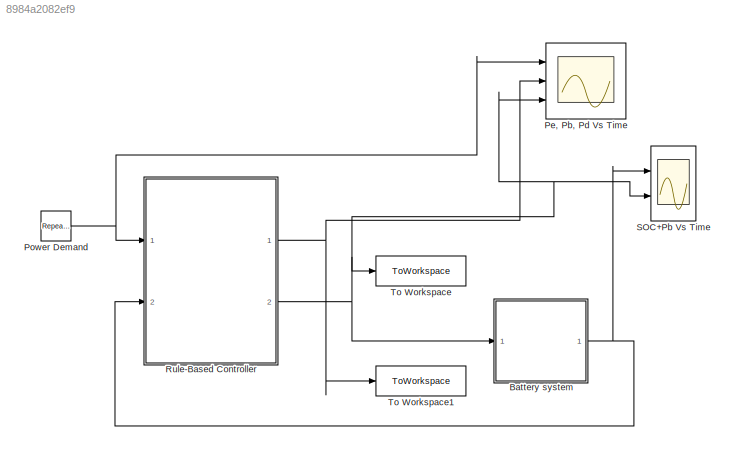
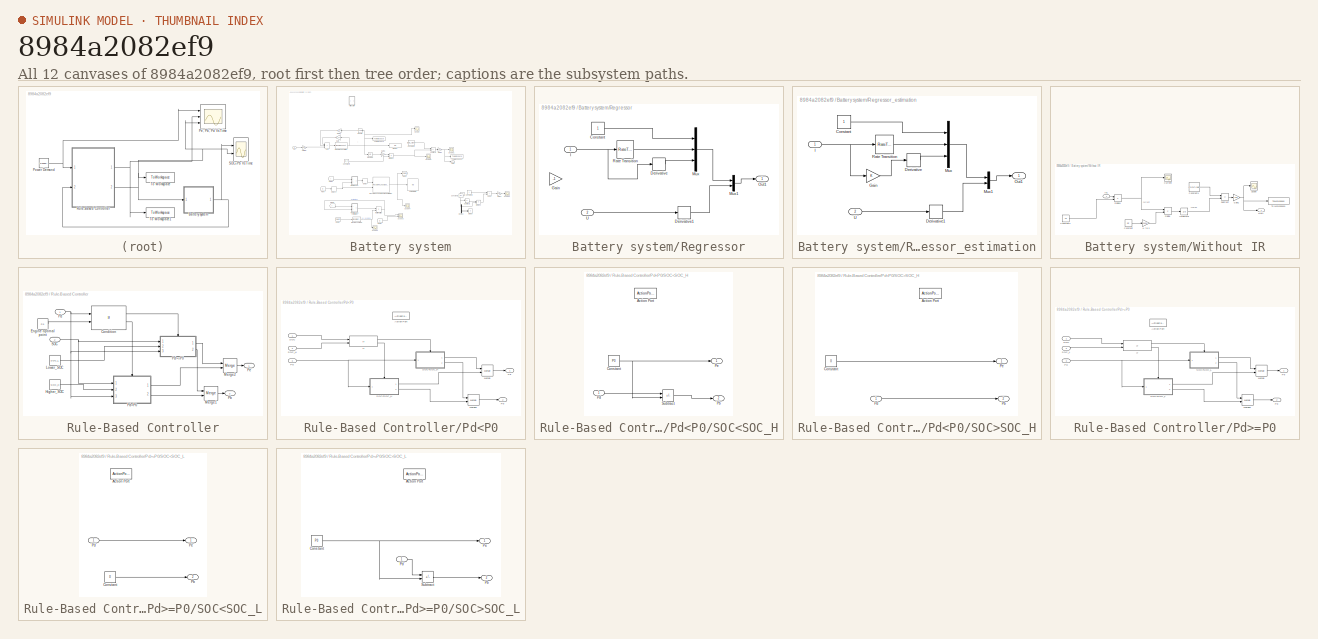
[diagram: thumbnail index - all 12 canvases of the model, root first then tree order]
MODEL slx_8984a2082ef9
KIND model
CONFIG AbsTol = auto
CONFIG EnableMultiTasking = off
CONFIG FixedStep = auto
CONFIG MaxStep = auto
CONFIG MinStep = auto
CONFIG RelTol = 1
CONFIG SampleTimeConstraint = Unconstrained
CONFIG SolverName = VariableStepAuto
CONFIG StartTime = 0.0
CONFIG StopTime = 262
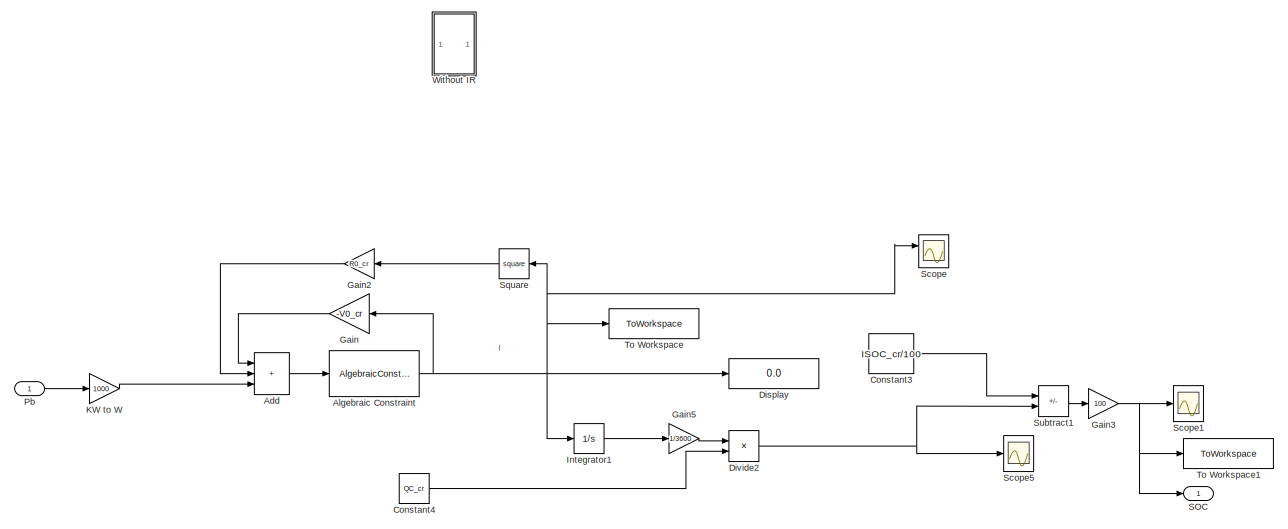
[diagram: Battery system - part 1/2, full width, top band]
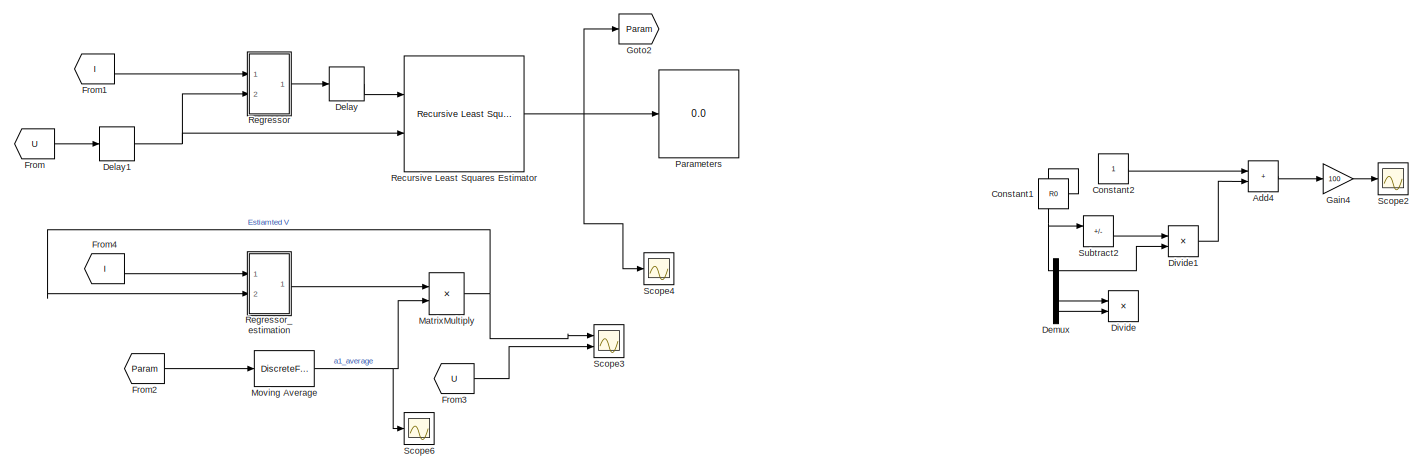
[diagram: Battery system - part 2/2, full width, bottom band]
BLOCK [SubSystem] Battery system
  Ports = [1, 1]
  RequestExecContextInheritance = off
BLOCK [Sum] Battery system/Add
  IconShape = rectangular
  Inputs = +++
  Ports = [3, 1]
BLOCK [Sum] Battery system/Add4
  Commented = on
  IconShape = rectangular
  Ports = [2, 1]
BLOCK [AlgebraicConstraint] Battery system/Algebraic Constraint
  InitialGuess = -999999999999
BLOCK [Constant] Battery system/Constant1
  Commented = on
  Value = R0
BLOCK [Constant] Battery system/Constant2
  Commented = on
BLOCK [Constant] Battery system/Constant3
  Value = ISOC_cr/100
BLOCK [Constant] Battery system/Constant4
  Value = QC_cr
BLOCK [Delay] Battery system/Delay
  Commented = on
  DelayLength = 1
  InitialCondition = 1
  InputPortMap = u0
  Ports = [1, 1]
BLOCK [Delay] Battery system/Delay1
  Commented = on
  DelayLength = 1
  InitialCondition = 1
  InputPortMap = u0
  Ports = [1, 1]
BLOCK [Demux] Battery system/Demux
  Commented = on
  Ports = [1, 4]
BLOCK [Display] Battery system/Display
  Decimation = 1
  Ports = [1]
BLOCK [Product] Battery system/Divide
  Commented = on
  Inputs = */
  Ports = [2, 1]
BLOCK [Product] Battery system/Divide1
  Commented = on
  Inputs = */
  Ports = [2, 1]
BLOCK [Product] Battery system/Divide2
  Inputs = */
  Ports = [2, 1]
BLOCK [From] Battery system/From
  Commented = on
  GotoTag = U
BLOCK [From] Battery system/From1
  Commented = on
  GotoTag = I
BLOCK [From] Battery system/From2
  Commented = on
  GotoTag = Param
BLOCK [From] Battery system/From3
  Commented = on
  GotoTag = U
BLOCK [From] Battery system/From4
  Commented = on
  GotoTag = I
BLOCK [Gain] Battery system/Gain
  Gain = -V0_cr
  NameLocation = top
BLOCK [Gain] Battery system/Gain2
  Gain = R0_cr
  NameLocation = top
BLOCK [Gain] Battery system/Gain3
  Gain = 100
BLOCK [Gain] Battery system/Gain4
  Commented = on
  Gain = 100
BLOCK [Gain] Battery system/Gain5
  Gain = 1/3600
BLOCK [Goto] Battery system/Goto2
  Commented = on
  GotoTag = Param
BLOCK [Integrator] Battery system/Integrator1
  Ports = [1, 1]
BLOCK [Gain] Battery system/KW to W
  Gain = 1000
BLOCK [Product] Battery system/MatrixMultiply
  Commented = on
  Multiplication = Matrix(*)
  Ports = [2, 1]
BLOCK [DiscreteFilter] Battery system/Moving Average
  Commented = on
  Denominator = [1 -(1-1/200)]
  InputPortMap = u0
  Numerator = [0 1/200]
  Ports = [1, 1]
BLOCK [Display] Battery system/Parameters
  Commented = on
  Decimation = 1
  Ports = [1]
BLOCK [Inport] Battery system/Pb
BLOCK [Reference] Battery system/Recursive Least Squares Estimator  REF=ctrlSharedLib/Recursive Least Squares Estimator
  Commented = on
  Ports = [2, 1]
  SourceBlock = ctrlSharedLib/Recursive Least Squares Estimator
  SourceProductBaseCode = CT,ID
  SourceType = idEstimatorsRLS
BLOCK [SubSystem] Battery system/Regressor
  Commented = on
  Ports = [2, 1]
  RequestExecContextInheritance = off
BLOCK [Constant] Battery system/Regressor/Constant
BLOCK [Derivative] Battery system/Regressor/Derivative
BLOCK [Derivative] Battery system/Regressor/Derivative1
  CoefficientInTFapproximation = -inf
BLOCK [Gain] Battery system/Regressor/Gain
  Gain = -1
BLOCK [Inport] Battery system/Regressor/I
BLOCK [Mux] Battery system/Regressor/Mux
  DisplayOption = bar
  Inputs = 3
  Ports = [3, 1]
BLOCK [Mux] Battery system/Regressor/Mux1
  DisplayOption = bar
  Inputs = 2
  Ports = [2, 1]
BLOCK [Outport] Battery system/Regressor/Out1
BLOCK [RateTransition] Battery system/Regressor/Rate Transition
  InitialCondition = 1
BLOCK [Inport] Battery system/Regressor/U
  Port = 2
BLOCK [SubSystem] Battery system/Regressor_estimation
  Commented = on
  Ports = [2, 1]
  RequestExecContextInheritance = off
BLOCK [Constant] Battery system/Regressor_estimation/Constant
BLOCK [Derivative] Battery system/Regressor_estimation/Derivative
BLOCK [Derivative] Battery system/Regressor_estimation/Derivative1
  CoefficientInTFapproximation = -inf
BLOCK [Gain] Battery system/Regressor_estimation/Gain
BLOCK [Inport] Battery system/Regressor_estimation/I
BLOCK [Mux] Battery system/Regressor_estimation/Mux
  DisplayOption = bar
  Inputs = 3
  Ports = [3, 1]
BLOCK [Mux] Battery system/Regressor_estimation/Mux1
  DisplayOption = bar
  Inputs = 2
  Ports = [2, 1]
BLOCK [Outport] Battery system/Regressor_estimation/Out1
BLOCK [RateTransition] Battery system/Regressor_estimation/Rate Transition
BLOCK [Inport] Battery system/Regressor_estimation/U
  Port = 2
BLOCK [Outport] Battery system/SOC
BLOCK [Scope] Battery system/Scope
  Floating = off
  NumInputPorts = 2
  Ports = [2]
  ScopeSpecificationString = Simulink.scopes.TimeScopeBlockCfg('CurrentConfiguration', extmgr.ConfigurationSet(extmgr.Configuration('Core','General UI',true),extmgr.Configuration('Core','Source UI',true),extmgr.Configuration('Sources','WiredSimulink',true,'DataLoggingVariableName','ScopeData1'),extmgr.Configuration('Visuals','Time Domain',true,'SerializedDisplays',{struct('MinYLimReal','-992.74884','MaxYLimReal','838.40989','...<+1478ch>
BLOCK [Scope] Battery system/Scope1
  Floating = off
  NumInputPorts = 1
  Ports = [1]
  ScopeSpecificationString = Simulink.scopes.TimeScopeBlockCfg('CurrentConfiguration', extmgr.ConfigurationSet(extmgr.Configuration('Core','General UI',true),extmgr.Configuration('Core','Source UI',true),extmgr.Configuration('Sources','WiredSimulink',true,'DataLoggingVariableName','ScopeData2'),extmgr.Configuration('Visuals','Time Domain',true,'SerializedDisplays',{struct('MinYLimReal','41.87168','MaxYLimReal','84.23648','YLa...<+1489ch>
BLOCK [Scope] Battery system/Scope2
  Commented = on
  Floating = off
  NumInputPorts = 1
  Ports = [1]
  ScopeSpecificationString = Simulink.scopes.TimeScopeBlockCfg('CurrentConfiguration', extmgr.ConfigurationSet(extmgr.Configuration('Core','General UI',true),extmgr.Configuration('Core','Source UI',true),extmgr.Configuration('Sources','WiredSimulink',true,'DataLoggingVariableName','ScopeData1'),extmgr.Configuration('Visuals','Time Domain',true,'SerializedDisplays',{struct('MinYLimReal','172.2144','MaxYLimReal','274.68275','YL...<+1422ch>
BLOCK [Scope] Battery system/Scope3
  Commented = on
  Floating = off
  NumInputPorts = 2
  Ports = [2]
  ScopeSpecificationString = Simulink.scopes.TimeScopeBlockCfg('CurrentConfiguration', extmgr.ConfigurationSet(extmgr.Configuration('Core','General UI',true),extmgr.Configuration('Core','Source UI',true),extmgr.Configuration('Sources','WiredSimulink',true,'DataLoggingVariableName','ScopeData2'),extmgr.Configuration('Visuals','Time Domain',true,'SerializedDisplays',{struct('MinYLimReal','174.83462','MaxYLimReal','410.98528','Y...<+1561ch>
BLOCK [Scope] Battery system/Scope4
  Commented = on
  Floating = off
  NumInputPorts = 1
  Ports = [1]
  ScopeSpecificationString = Simulink.scopes.TimeScopeBlockCfg('CurrentConfiguration', extmgr.ConfigurationSet(extmgr.Configuration('Core','General UI',true),extmgr.Configuration('Core','Source UI',true),extmgr.Configuration('Sources','WiredSimulink',true,'DataLoggingVariableName','ScopeData3'),extmgr.Configuration('Visuals','Time Domain',true,'SerializedDisplays',{struct('MinYLimReal','-0.000031','MaxYLimReal','0.000062','YL...<+1681ch>
BLOCK [Scope] Battery system/Scope5
  Floating = off
  NumInputPorts = 1
  Ports = [1]
  ScopeSpecificationString = Simulink.scopes.TimeScopeBlockCfg('CurrentConfiguration', extmgr.ConfigurationSet(extmgr.Configuration('Core','General UI',true),extmgr.Configuration('Core','Source UI',true),extmgr.Configuration('Sources','WiredSimulink',true,'DataLoggingVariableName','ScopeData6'),extmgr.Configuration('Visuals','Time Domain',true,'SerializedDisplays',{struct('MinYLimReal','-0.375','MaxYLimReal','0.375','YLabelRe...<+1470ch>
BLOCK [Scope] Battery system/Scope6
  Commented = on
  Floating = off
  NumInputPorts = 1
  Ports = [1]
  ScopeSpecificationString = Simulink.scopes.TimeScopeBlockCfg('CurrentConfiguration', extmgr.ConfigurationSet(extmgr.Configuration('Core','General UI',true),extmgr.Configuration('Core','Source UI',true),extmgr.Configuration('Sources','WiredSimulink',true,'DataLoggingVariableName','ScopeData4'),extmgr.Configuration('Visuals','Time Domain',true,'SerializedDisplays',{struct('MinYLimReal','-0.000005','MaxYLimReal','0.000061','YL...<+1589ch>
BLOCK [Math] Battery system/Square
  NameLocation = top
  Operator = square
  Ports = [1, 1]
BLOCK [Sum] Battery system/Subtract1
  IconShape = rectangular
  Inputs = +-
  Ports = [2, 1]
BLOCK [Sum] Battery system/Subtract2
  Commented = on
  IconShape = rectangular
  Inputs = +-
  Ports = [2, 1]
BLOCK [ToWorkspace] Battery system/To Workspace
  FixptAsFi = on
  MaxDataPoints = inf
  Ports = [1]
  SampleTime = -1
  SaveFormat = Structure With Time
  VariableName = I
BLOCK [ToWorkspace] Battery system/To Workspace1
  FixptAsFi = on
  MaxDataPoints = inf
  Ports = [1]
  SampleTime = -1
  SaveFormat = Structure With Time
  VariableName = s
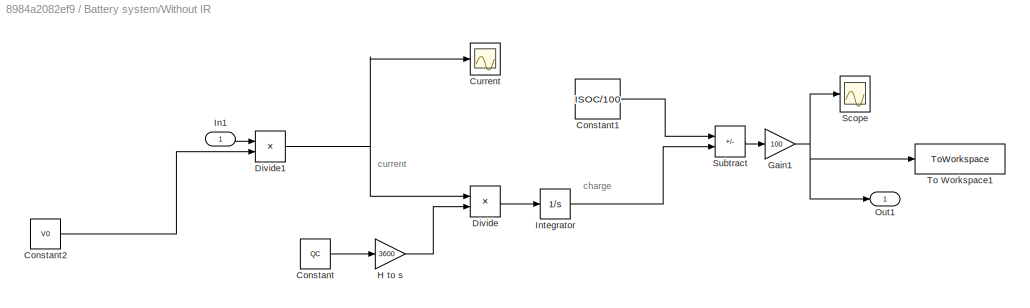
BLOCK [SubSystem] Battery system/Without IR
  Ports = [1, 1]
  RequestExecContextInheritance = off
BLOCK [Constant] Battery system/Without IR/Constant
  Commented = on
  Value = QC
BLOCK [Constant] Battery system/Without IR/Constant1
  Commented = on
  Value = ISOC/100
BLOCK [Constant] Battery system/Without IR/Constant2
  Commented = on
  Value = V0
BLOCK [Scope] Battery system/Without IR/Current
  Commented = on
  Floating = off
  NumInputPorts = 1
  Ports = [1]
  ScopeSpecificationString = Simulink.scopes.TimeScopeBlockCfg('CurrentConfiguration', extmgr.ConfigurationSet(extmgr.Configuration('Core','General UI',true),extmgr.Configuration('Core','Source UI',true),extmgr.Configuration('Sources','WiredSimulink',true,'DataLoggingVariableName','ScopeData4'),extmgr.Configuration('Visuals','Time Domain',true,'SerializedDisplays',{struct('MinYLimReal','-5611.34168','MaxYLimReal','5601.96893'...<+1417ch>
BLOCK [Product] Battery system/Without IR/Divide
  Commented = on
  Inputs = */
  Ports = [2, 1]
BLOCK [Product] Battery system/Without IR/Divide1
  Commented = on
  Inputs = */
  Ports = [2, 1]
BLOCK [Gain] Battery system/Without IR/Gain1
  Commented = on
  Gain = 100
BLOCK [Gain] Battery system/Without IR/H to s
  Commented = on
  Gain = 3600
BLOCK [Inport] Battery system/Without IR/In1
BLOCK [Integrator] Battery system/Without IR/Integrator
  Commented = on
  Ports = [1, 1]
BLOCK [Outport] Battery system/Without IR/Out1
BLOCK [Scope] Battery system/Without IR/Scope
  Commented = on
  Floating = off
  NumInputPorts = 1
  Ports = [1]
  ScopeSpecificationString = Simulink.scopes.TimeScopeBlockCfg('CurrentConfiguration', extmgr.ConfigurationSet(extmgr.Configuration('Core','General UI',true),extmgr.Configuration('Core','Source UI',true),extmgr.Configuration('Sources','WiredSimulink',true,'DataLoggingVariableName','ScopeData1'),extmgr.Configuration('Visuals','Time Domain',true,'SerializedDisplays',{struct('MinYLimReal','-74180.20543','MaxYLimReal','8297.8006'...<+1506ch>
BLOCK [Sum] Battery system/Without IR/Subtract
  Commented = on
  IconShape = rectangular
  Inputs = +-
  Ports = [2, 1]
BLOCK [ToWorkspace] Battery system/Without IR/To Workspace1
  Commented = on
  FixptAsFi = on
  MaxDataPoints = inf
  Ports = [1]
  SampleTime = -1
  VariableName = SOC
BLOCK [Scope] Pe, Pb, Pd Vs Time
  Floating = off
  NumInputPorts = 3
  Ports = [3]
  ScopeSpecificationString = Simulink.scopes.TimeScopeBlockCfg('CurrentConfiguration', extmgr.ConfigurationSet(extmgr.Configuration('Core','General UI',true,'FigureColor',[1 1 1]),extmgr.Configuration('Core','Source UI',true),extmgr.Configuration('Sources','WiredSimulink',true,'DataLoggingVariableName','ScopeData1'),extmgr.Configuration('Visuals','Time Domain',true,'SerializedDisplays',{struct('MinYLimReal','78.75','MaxYLimRe...<+2535ch>
BLOCK [Reference] Power Demand  REF=simulink/Sources/Repeating
Sequence
Interpolated
  Ports = [0, 1]
  SourceBlock = simulink/Sources/Repeating\nSequence\nInterpolated
  SourceProductBaseCode = SL
  SourceType = Repeating Sequence Interpolated
BLOCK [SubSystem] Rule-Based Controller
  Ports = [2, 2]
  RequestExecContextInheritance = off
BLOCK [Constant] Rule-Based Controller/  Engine optimal point 
  Value = P0
BLOCK [If] Rule-Based Controller/Condition
  IfExpression = u1 >= u2
  NumInputs = 2
  Ports = [2, 2]
BLOCK [Constant] Rule-Based Controller/Higher_SOC
  NameLocation = left
  Value = SOC_H
BLOCK [Constant] Rule-Based Controller/Lower_SOC
  NameLocation = left
  Value = SOC_L
BLOCK [Merge] Rule-Based Controller/Merge1
  Ports = [2, 1]
BLOCK [Merge] Rule-Based Controller/Merge2
  Ports = [2, 1]
BLOCK [Outport] Rule-Based Controller/Pb
  Port = 2
BLOCK [Inport] Rule-Based Controller/Pd
BLOCK [SubSystem] Rule-Based Controller/Pd<P0
  Ports = [3, 2, 0, 0, 0, 0, 0, 1]
  RequestExecContextInheritance = off
  TreatAsAtomicUnit = on
BLOCK [ActionPort] Rule-Based Controller/Pd<P0/Action Port
  ActionPortLabel = else
BLOCK [If] Rule-Based Controller/Pd<P0/If
  IfExpression = u1 > u2
  NumInputs = 2
  Ports = [2, 2]
BLOCK [Merge] Rule-Based Controller/Pd<P0/Merge
  Ports = [2, 1]
BLOCK [Merge] Rule-Based Controller/Pd<P0/Merge1
  Ports = [2, 1]
BLOCK [Outport] Rule-Based Controller/Pd<P0/Pb
  Port = 2
BLOCK [Inport] Rule-Based Controller/Pd<P0/Pd
  Port = 3
BLOCK [Outport] Rule-Based Controller/Pd<P0/Pe
BLOCK [Inport] Rule-Based Controller/Pd<P0/SOC
BLOCK [SubSystem] Rule-Based Controller/Pd<P0/SOC<SOC_H
  Ports = [1, 2, 0, 0, 0, 0, 0, 1]
  RequestExecContextInheritance = off
  TreatAsAtomicUnit = on
BLOCK [ActionPort] Rule-Based Controller/Pd<P0/SOC<SOC_H/Action Port
  ActionPortLabel = else
BLOCK [Constant] Rule-Based Controller/Pd<P0/SOC<SOC_H/Constant
  Value = P0
BLOCK [Outport] Rule-Based Controller/Pd<P0/SOC<SOC_H/Pb
  Port = 2
BLOCK [Inport] Rule-Based Controller/Pd<P0/SOC<SOC_H/Pd
BLOCK [Outport] Rule-Based Controller/Pd<P0/SOC<SOC_H/Pe
BLOCK [Sum] Rule-Based Controller/Pd<P0/SOC<SOC_H/Subtract
  IconShape = rectangular
  Inputs = +-
  Ports = [2, 1]
BLOCK [SubSystem] Rule-Based Controller/Pd<P0/SOC>SOC_H
  Ports = [1, 2, 0, 0, 0, 0, 0, 1]
  RequestExecContextInheritance = off
  TreatAsAtomicUnit = on
BLOCK [ActionPort] Rule-Based Controller/Pd<P0/SOC>SOC_H/Action Port
  ActionPortLabel = if(u1 > u2)
BLOCK [Constant] Rule-Based Controller/Pd<P0/SOC>SOC_H/Constant
  Value = 0
BLOCK [Outport] Rule-Based Controller/Pd<P0/SOC>SOC_H/Pb
  Port = 2
BLOCK [Inport] Rule-Based Controller/Pd<P0/SOC>SOC_H/Pd
BLOCK [Outport] Rule-Based Controller/Pd<P0/SOC>SOC_H/Pe
BLOCK [Inport] Rule-Based Controller/Pd<P0/SOC_H
  Port = 2
BLOCK [SubSystem] Rule-Based Controller/Pd>=P0
  Ports = [3, 2, 0, 0, 0, 0, 0, 1]
  RequestExecContextInheritance = off
  TreatAsAtomicUnit = on
BLOCK [ActionPort] Rule-Based Controller/Pd>=P0/Action Port
  ActionPortLabel = if(u1 >= u2)
BLOCK [If] Rule-Based Controller/Pd>=P0/If
  IfExpression = u1 > u2
  NumInputs = 2
  Ports = [2, 2]
BLOCK [Merge] Rule-Based Controller/Pd>=P0/Merge
  Ports = [2, 1]
BLOCK [Merge] Rule-Based Controller/Pd>=P0/Merge1
  Ports = [2, 1]
BLOCK [Outport] Rule-Based Controller/Pd>=P0/Pb
  Port = 2
BLOCK [Inport] Rule-Based Controller/Pd>=P0/Pd
  Port = 3
BLOCK [Outport] Rule-Based Controller/Pd>=P0/Pe
BLOCK [Inport] Rule-Based Controller/Pd>=P0/SOC
BLOCK [SubSystem] Rule-Based Controller/Pd>=P0/SOC<SOC_L
  Ports = [1, 2, 0, 0, 0, 0, 0, 1]
  RequestExecContextInheritance = off
  TreatAsAtomicUnit = on
BLOCK [ActionPort] Rule-Based Controller/Pd>=P0/SOC<SOC_L/Action Port
  ActionPortLabel = else
BLOCK [Constant] Rule-Based Controller/Pd>=P0/SOC<SOC_L/Constant
  Value = 0
BLOCK [Outport] Rule-Based Controller/Pd>=P0/SOC<SOC_L/Pb
  Port = 2
BLOCK [Inport] Rule-Based Controller/Pd>=P0/SOC<SOC_L/Pd
BLOCK [Outport] Rule-Based Controller/Pd>=P0/SOC<SOC_L/Pe
BLOCK [SubSystem] Rule-Based Controller/Pd>=P0/SOC>SOC_L
  Ports = [1, 2, 0, 0, 0, 0, 0, 1]
  RequestExecContextInheritance = off
  TreatAsAtomicUnit = on
BLOCK [ActionPort] Rule-Based Controller/Pd>=P0/SOC>SOC_L/Action Port
  ActionPortLabel = if(u1 > u2)
BLOCK [Constant] Rule-Based Controller/Pd>=P0/SOC>SOC_L/Constant
  Value = P0
BLOCK [Outport] Rule-Based Controller/Pd>=P0/SOC>SOC_L/Pb
  Port = 2
BLOCK [Inport] Rule-Based Controller/Pd>=P0/SOC>SOC_L/Pd
BLOCK [Outport] Rule-Based Controller/Pd>=P0/SOC>SOC_L/Pe
BLOCK [Sum] Rule-Based Controller/Pd>=P0/SOC>SOC_L/Subtract
  IconShape = rectangular
  Inputs = +-
  Ports = [2, 1]
BLOCK [Inport] Rule-Based Controller/Pd>=P0/SOC_L
  Port = 2
BLOCK [Outport] Rule-Based Controller/Pe
BLOCK [Inport] Rule-Based Controller/SOC
  Port = 2
BLOCK [Scope] SOC+Pb Vs Time
  Floating = off
  NumInputPorts = 2
  Ports = [2]
  ScopeSpecificationString = Simulink.scopes.TimeScopeBlockCfg('CurrentConfiguration', extmgr.ConfigurationSet(extmgr.Configuration('Core','General UI',true,'FigureColor',[1 1 1]),extmgr.Configuration('Core','Source UI',true),extmgr.Configuration('Sources','WiredSimulink',true),extmgr.Configuration('Visuals','Time Domain',true,'SerializedDisplays',{struct('MinYLimReal','83.67467','MaxYLimReal','83.82504','YLabelReal','','MinY...<+2515ch>
BLOCK [ToWorkspace] To Workspace
  FixptAsFi = on
  MaxDataPoints = inf
  Ports = [1]
  SampleTime = -1
  VariableName = P_b
BLOCK [ToWorkspace] To Workspace1
  FixptAsFi = on
  MaxDataPoints = inf
  Ports = [1]
  SampleTime = -1
  VariableName = P_e
ANNOTATION Battery system: I
ANNOTATION Battery system/Without IR: charge
ANNOTATION Battery system/Without IR: current
LINE Battery system/Add4:1 -> Battery system/Gain4:1
LINE Battery system/Add:1 -> Battery system/Algebraic Constraint:1
NET Battery system/Algebraic Constraint:1 -> Battery system/Display:1, Battery system/Gain:1, Battery system/Integrator1:1, Battery system/Scope:1, Battery system/Square:1, Battery system/To Workspace:1
NET Battery system/Constant1:1 -> Battery system/Divide1:2, Battery system/Subtract2:1
LINE Battery system/Constant2:1 -> Battery system/Add4:1
LINE Battery system/Constant3:1 -> Battery system/Subtract1:1
LINE Battery system/Constant4:1 -> Battery system/Divide2:2
NET Battery system/Delay1:1 -> Battery system/Recursive Least Squares Estimator:2, Battery system/Regressor:2
LINE Battery system/Delay:1 -> Battery system/Recursive Least Squares Estimator:1
LINE Battery system/Demux:3 -> Battery system/Divide:1
LINE Battery system/Demux:4 -> Battery system/Divide:2
LINE Battery system/Divide1:1 -> Battery system/Add4:2
NET Battery system/Divide2:1 -> Battery system/Scope5:1, Battery system/Subtract1:2
LINE Battery system/From1:1 -> Battery system/Regressor:1
LINE Battery system/From2:1 -> Battery system/Moving Average:1
LINE Battery system/From3:1 -> Battery system/Scope3:2
LINE Battery system/From4:1 -> Battery system/Regressor_estimation:1
LINE Battery system/From:1 -> Battery system/Delay1:1
LINE Battery system/Gain2:1 -> Battery system/Add:2
NET Battery system/Gain3:1 -> Battery system/SOC:1, Battery system/Scope1:1, Battery system/To Workspace1:1
LINE Battery system/Gain4:1 -> Battery system/Scope2:1
LINE Battery system/Gain5:1 -> Battery system/Divide2:1
LINE Battery system/Gain:1 -> Battery system/Add:1
LINE Battery system/Integrator1:1 -> Battery system/Gain5:1
LINE Battery system/KW to W:1 -> Battery system/Add:3
NET Battery system/MatrixMultiply:1 -> Battery system/Regressor_estimation:2, Battery system/Scope3:1
NET Battery system/Moving Average:1 -> Battery system/MatrixMultiply:2, Battery system/Scope6:1
LINE Battery system/Pb:1 -> Battery system/KW to W:1
NET Battery system/Recursive Least Squares Estimator:1 -> Battery system/Goto2:1, Battery system/Parameters:1, Battery system/Scope4:1
LINE Battery system/Regressor/Constant:1 -> Battery system/Regressor/Mux:1
LINE Battery system/Regressor/Derivative1:1 -> Battery system/Regressor/Mux1:2
LINE Battery system/Regressor/Derivative:1 -> Battery system/Regressor/Mux:3
NET Battery system/Regressor/I:1 -> Battery system/Regressor/Derivative:1, Battery system/Regressor/Rate Transition:1
LINE Battery system/Regressor/Mux1:1 -> Battery system/Regressor/Out1:1
LINE Battery system/Regressor/Mux:1 -> Battery system/Regressor/Mux1:1
LINE Battery system/Regressor/Rate Transition:1 -> Battery system/Regressor/Mux:2
LINE Battery system/Regressor/U:1 -> Battery system/Regressor/Derivative1:1
LINE Battery system/Regressor:1 -> Battery system/Delay:1
LINE Battery system/Regressor_estimation/Constant:1 -> Battery system/Regressor_estimation/Mux:1
LINE Battery system/Regressor_estimation/Derivative1:1 -> Battery system/Regressor_estimation/Mux1:2
LINE Battery system/Regressor_estimation/Derivative:1 -> Battery system/Regressor_estimation/Mux:3
LINE Battery system/Regressor_estimation/Gain:1 -> Battery system/Regressor_estimation/Derivative:1
NET Battery system/Regressor_estimation/I:1 -> Battery system/Regressor_estimation/Gain:1, Battery system/Regressor_estimation/Rate Transition:1
LINE Battery system/Regressor_estimation/Mux1:1 -> Battery system/Regressor_estimation/Out1:1
LINE Battery system/Regressor_estimation/Mux:1 -> Battery system/Regressor_estimation/Mux1:1
LINE Battery system/Regressor_estimation/Rate Transition:1 -> Battery system/Regressor_estimation/Mux:2
LINE Battery system/Regressor_estimation/U:1 -> Battery system/Regressor_estimation/Derivative1:1
LINE Battery system/Regressor_estimation:1 -> Battery system/MatrixMultiply:1
LINE Battery system/Square:1 -> Battery system/Gain2:1
LINE Battery system/Subtract1:1 -> Battery system/Gain3:1
LINE Battery system/Subtract2:1 -> Battery system/Divide1:1
LINE Battery system/Without IR/Constant1:1 -> Battery system/Without IR/Subtract:1
LINE Battery system/Without IR/Constant2:1 -> Battery system/Without IR/Divide1:2
LINE Battery system/Without IR/Constant:1 -> Battery system/Without IR/H to s:1
NET Battery system/Without IR/Divide1:1 -> Battery system/Without IR/Current:1, Battery system/Without IR/Divide:1
LINE Battery system/Without IR/Divide:1 -> Battery system/Without IR/Integrator:1
NET Battery system/Without IR/Gain1:1 -> Battery system/Without IR/Out1:1, Battery system/Without IR/Scope:1, Battery system/Without IR/To Workspace1:1
LINE Battery system/Without IR/H to s:1 -> Battery system/Without IR/Divide:2
LINE Battery system/Without IR/In1:1 -> Battery system/Without IR/Divide1:1
LINE Battery system/Without IR/Integrator:1 -> Battery system/Without IR/Subtract:2
LINE Battery system/Without IR/Subtract:1 -> Battery system/Without IR/Gain1:1
NET Battery system:1 -> Rule-Based Controller:2, SOC+Pb Vs Time:1
NET Power Demand:1 -> Pe, Pb, Pd Vs Time:1, Rule-Based Controller:1
LINE Rule-Based Controller/  Engine optimal point :1 -> Rule-Based Controller/Condition:2
LINE Rule-Based Controller/Condition:1 -> Rule-Based Controller/Pd>=P0:ifaction
LINE Rule-Based Controller/Condition:2 -> Rule-Based Controller/Pd<P0:ifaction
LINE Rule-Based Controller/Higher_SOC:1 -> Rule-Based Controller/Pd<P0:2
LINE Rule-Based Controller/Lower_SOC:1 -> Rule-Based Controller/Pd>=P0:2
LINE Rule-Based Controller/Merge1:1 -> Rule-Based Controller/Pb:1
LINE Rule-Based Controller/Merge2:1 -> Rule-Based Controller/Pe:1
NET Rule-Based Controller/Pd:1 -> Rule-Based Controller/Condition:1, Rule-Based Controller/Pd<P0:3, Rule-Based Controller/Pd>=P0:3
LINE Rule-Based Controller/Pd<P0/If:1 -> Rule-Based Controller/Pd<P0/SOC>SOC_H:ifaction
LINE Rule-Based Controller/Pd<P0/If:2 -> Rule-Based Controller/Pd<P0/SOC<SOC_H:ifaction
LINE Rule-Based Controller/Pd<P0/Merge1:1 -> Rule-Based Controller/Pd<P0/Pb:1
LINE Rule-Based Controller/Pd<P0/Merge:1 -> Rule-Based Controller/Pd<P0/Pe:1
NET Rule-Based Controller/Pd<P0/Pd:1 -> Rule-Based Controller/Pd<P0/SOC<SOC_H:1, Rule-Based Controller/Pd<P0/SOC>SOC_H:1
LINE Rule-Based Controller/Pd<P0/SOC:1 -> Rule-Based Controller/Pd<P0/If:1
NET Rule-Based Controller/Pd<P0/SOC<SOC_H/Constant:1 -> Rule-Based Controller/Pd<P0/SOC<SOC_H/Pe:1, Rule-Based Controller/Pd<P0/SOC<SOC_H/Subtract:2
LINE Rule-Based Controller/Pd<P0/SOC<SOC_H/Pd:1 -> Rule-Based Controller/Pd<P0/SOC<SOC_H/Subtract:1
LINE Rule-Based Controller/Pd<P0/SOC<SOC_H/Subtract:1 -> Rule-Based Controller/Pd<P0/SOC<SOC_H/Pb:1
LINE Rule-Based Controller/Pd<P0/SOC<SOC_H:1 -> Rule-Based Controller/Pd<P0/Merge:2
LINE Rule-Based Controller/Pd<P0/SOC<SOC_H:2 -> Rule-Based Controller/Pd<P0/Merge1:2
LINE Rule-Based Controller/Pd<P0/SOC>SOC_H/Constant:1 -> Rule-Based Controller/Pd<P0/SOC>SOC_H/Pe:1
LINE Rule-Based Controller/Pd<P0/SOC>SOC_H/Pd:1 -> Rule-Based Controller/Pd<P0/SOC>SOC_H/Pb:1
LINE Rule-Based Controller/Pd<P0/SOC>SOC_H:1 -> Rule-Based Controller/Pd<P0/Merge:1
LINE Rule-Based Controller/Pd<P0/SOC>SOC_H:2 -> Rule-Based Controller/Pd<P0/Merge1:1
LINE Rule-Based Controller/Pd<P0/SOC_H:1 -> Rule-Based Controller/Pd<P0/If:2
LINE Rule-Based Controller/Pd<P0:1 -> Rule-Based Controller/Merge2:2
LINE Rule-Based Controller/Pd<P0:2 -> Rule-Based Controller/Merge1:2
LINE Rule-Based Controller/Pd>=P0/If:1 -> Rule-Based Controller/Pd>=P0/SOC>SOC_L:ifaction
LINE Rule-Based Controller/Pd>=P0/If:2 -> Rule-Based Controller/Pd>=P0/SOC<SOC_L:ifaction
LINE Rule-Based Controller/Pd>=P0/Merge1:1 -> Rule-Based Controller/Pd>=P0/Pb:1
LINE Rule-Based Controller/Pd>=P0/Merge:1 -> Rule-Based Controller/Pd>=P0/Pe:1
NET Rule-Based Controller/Pd>=P0/Pd:1 -> Rule-Based Controller/Pd>=P0/SOC<SOC_L:1, Rule-Based Controller/Pd>=P0/SOC>SOC_L:1
LINE Rule-Based Controller/Pd>=P0/SOC:1 -> Rule-Based Controller/Pd>=P0/If:1
LINE Rule-Based Controller/Pd>=P0/SOC<SOC_L/Constant:1 -> Rule-Based Controller/Pd>=P0/SOC<SOC_L/Pb:1
LINE Rule-Based Controller/Pd>=P0/SOC<SOC_L/Pd:1 -> Rule-Based Controller/Pd>=P0/SOC<SOC_L/Pe:1
LINE Rule-Based Controller/Pd>=P0/SOC<SOC_L:1 -> Rule-Based Controller/Pd>=P0/Merge:2
LINE Rule-Based Controller/Pd>=P0/SOC<SOC_L:2 -> Rule-Based Controller/Pd>=P0/Merge1:2
NET Rule-Based Controller/Pd>=P0/SOC>SOC_L/Constant:1 -> Rule-Based Controller/Pd>=P0/SOC>SOC_L/Pe:1, Rule-Based Controller/Pd>=P0/SOC>SOC_L/Subtract:2
LINE Rule-Based Controller/Pd>=P0/SOC>SOC_L/Pd:1 -> Rule-Based Controller/Pd>=P0/SOC>SOC_L/Subtract:1
LINE Rule-Based Controller/Pd>=P0/SOC>SOC_L/Subtract:1 -> Rule-Based Controller/Pd>=P0/SOC>SOC_L/Pb:1
LINE Rule-Based Controller/Pd>=P0/SOC>SOC_L:1 -> Rule-Based Controller/Pd>=P0/Merge:1
LINE Rule-Based Controller/Pd>=P0/SOC>SOC_L:2 -> Rule-Based Controller/Pd>=P0/Merge1:1
LINE Rule-Based Controller/Pd>=P0/SOC_L:1 -> Rule-Based Controller/Pd>=P0/If:2
LINE Rule-Based Controller/Pd>=P0:1 -> Rule-Based Controller/Merge2:1
LINE Rule-Based Controller/Pd>=P0:2 -> Rule-Based Controller/Merge1:1
NET Rule-Based Controller/SOC:1 -> Rule-Based Controller/Pd<P0:1, Rule-Based Controller/Pd>=P0:1
NET Rule-Based Controller:1 -> Pe, Pb, Pd Vs Time:2, To Workspace1:1
NET Rule-Based Controller:2 -> Battery system:1, Pe, Pb, Pd Vs Time:3, SOC+Pb Vs Time:2, To Workspace:1
note: NET lines group one-source signal fan-out (src -> all destinations, sorted); 1:1 wires keep LINE
